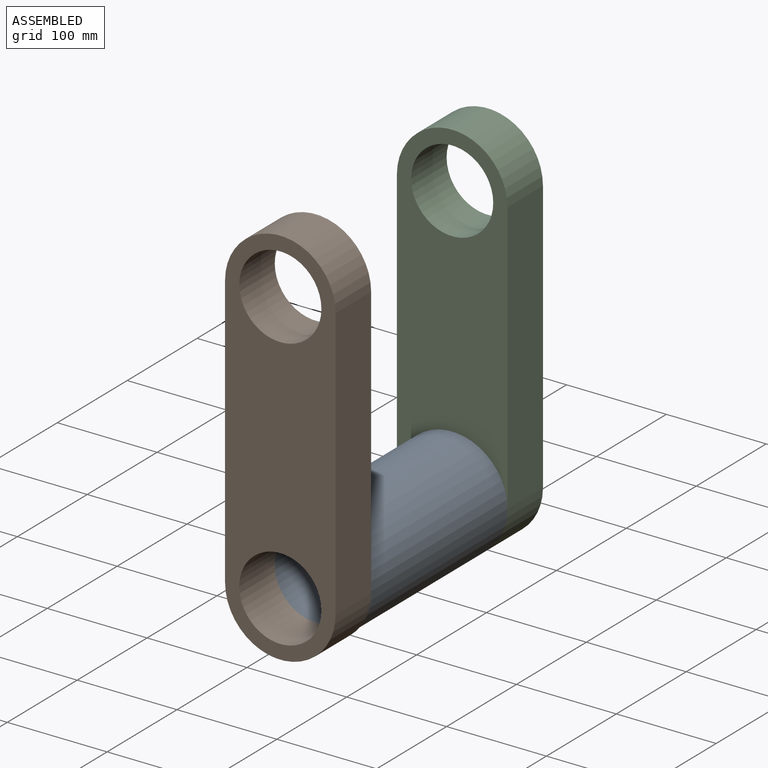
[diagram: assembled view]
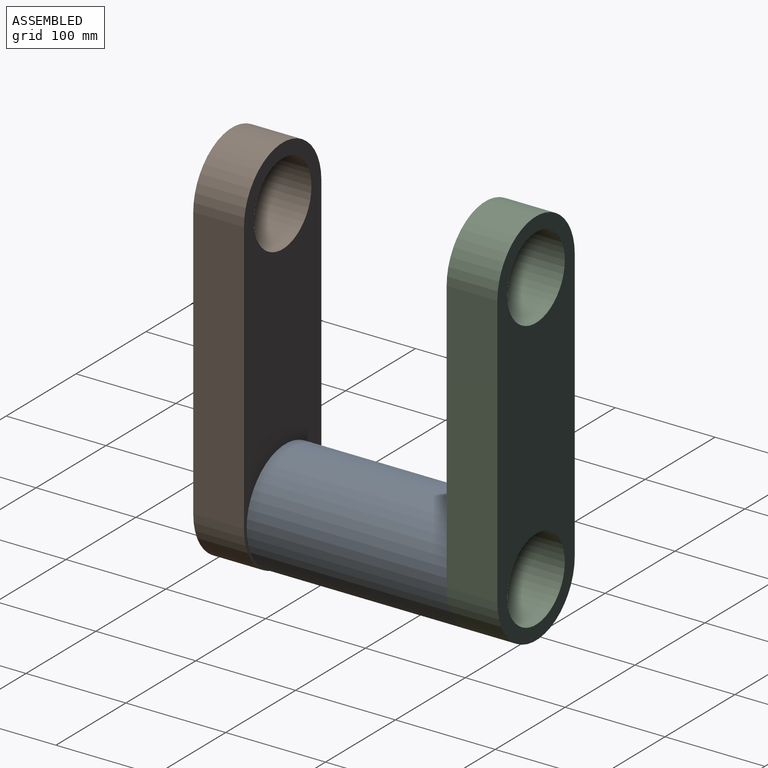
[diagram: assembled view, second angle]
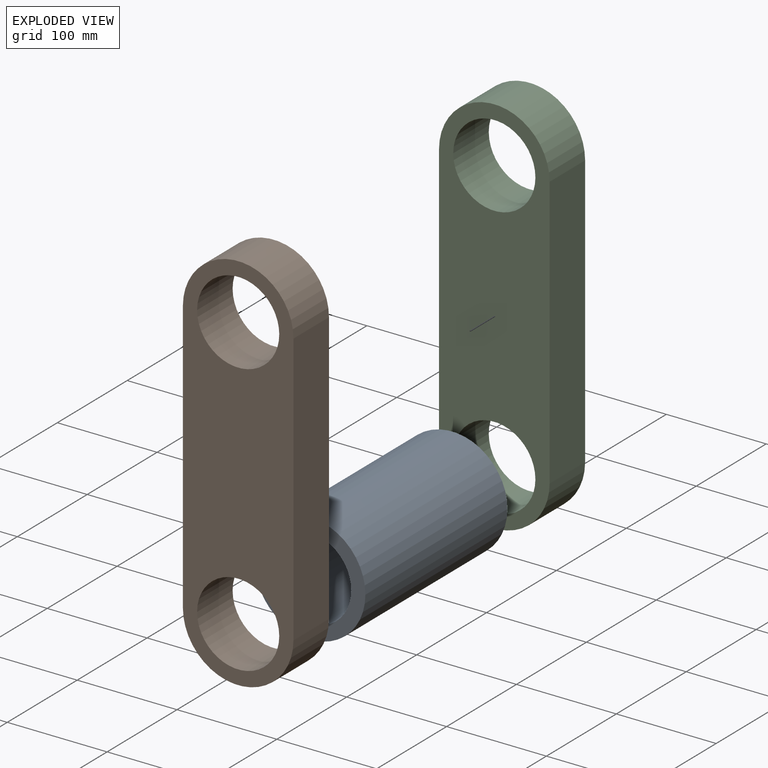
[diagram: exploded view]
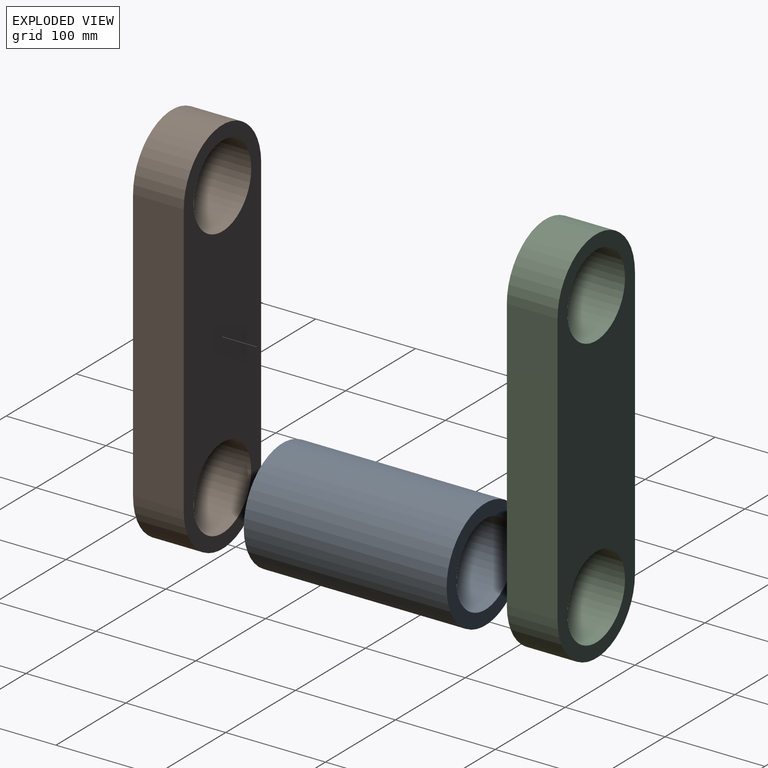
[diagram: exploded view, second angle]
ASSEMBLY  parts=3 mates=2
PART A: 4 faces, bbox 110.7x203.2x110.7 mm
  f0: cylinder r=41.15mm len=203.2mm, axis (0,1,0), area 52535.4mm2, adj f2,f3
  f1: cylinder r=55.37mm len=203.2mm, axis (0,1,0), area 70695.1mm2, adj f2,f3
  f2: plane 110.74x110.74mm, normal (0,-1,0), area 4312.9mm2, adj f0,f1
  f3: plane 110.74x110.74mm, normal (0,1,0), area 4312.9mm2, adj f0,f1
PART B: 8 faces, bbox 110.7x50.8x384 mm
  f0: plane 273.23x50.8mm, normal (1,0,0), area 13880.1mm2, adj f1,f3,f6,f7
  f1: cylinder r=55.37mm len=110.74mm, axis (0,1,0), area 8837mm2, adj f0,f2,f6,f7
  f2: plane 273.23x50.8mm, normal (-1,0,0), area 13880.1mm2, adj f1,f3,f6,f7
  f3: cylinder r=55.37mm len=110.74mm, axis (0,1,0), area 8837mm2, adj f0,f2,f6,f7
  f4: cylinder r=41.15mm len=82.3mm, axis (0,1,0), area 13133.9mm2, adj f6,f7
  f5: cylinder r=41.15mm len=82.3mm, axis (0,1,0), area 13133.9mm2, adj f6,f7
  f6: plane 383.97x110.74mm, normal (0,-1,0), area 29252.5mm2, adj f0,f1,f2,f3,f4,f5
  f7: plane 383.97x110.74mm, normal (0,1,0), area 29252.5mm2, adj f0,f1,f2,f3,f4,f5
PART C: same geometry as B
PLACE A t=(220.48,-237.21,232.5)mm
PLACE B t=(224.23,-335.97,370.12)mm
PLACE C t=(220.48,-84.81,369.11)mm
MATE parallel B.f3 <-> A.f0  axis (0,1,0) through (224.23,-335.97,233.5)mm
MATE parallel A.f0 <-> C.f3  axis (0,1,0) through (220.48,-135.61,232.5)mm
